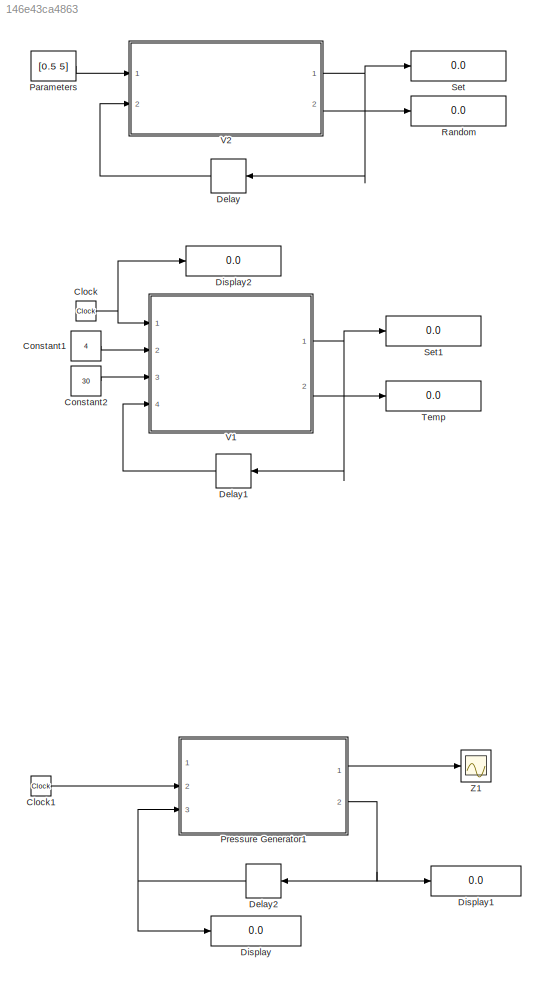
MODEL slx_146e43ca4863
KIND model
CONFIG AbsTol = auto
CONFIG EnableMultiTasking = off
CONFIG FixedStep = 1
CONFIG MaxStep = auto
CONFIG MinStep = auto
CONFIG RelTol = 1e-3
CONFIG SampleTimeConstraint = Unconstrained
CONFIG SolverName = VariableStepAuto
CONFIG StartTime = 0.0
CONFIG StopTime = 120
BLOCK [Clock] Clock
BLOCK [Clock] Clock1
BLOCK [Constant] Constant1
  Value = 4
BLOCK [Constant] Constant2
  Value = 30
BLOCK [Delay] Delay
  DelayLength = 1
  InitialCondition = 0
  InputPortMap = u0
  Ports = [1, 1]
BLOCK [Delay] Delay1
  DelayLength = 1
  InitialCondition = 0
  InputPortMap = u0
  Ports = [1, 1]
BLOCK [Delay] Delay2
  DelayLength = 1
  InitialCondition = 0.0001
  InputPortMap = u0
  Ports = [1, 1]
BLOCK [Display] Display
  Decimation = 1
  Format = long
  Ports = [1]
BLOCK [Display] Display1
  Decimation = 1
  Format = long
  Ports = [1]
BLOCK [Display] Display2
  Decimation = 1
  Ports = [1]
BLOCK [Constant] Parameters
  Value = [0.5 5]
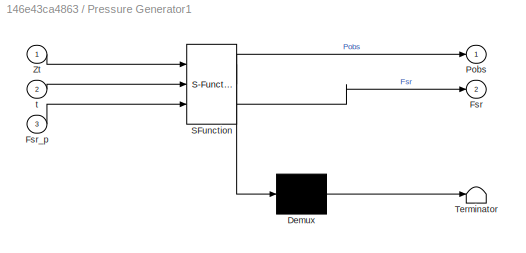
BLOCK [SubSystem] Pressure Generator1
  ErrorFcn = Stateflow.Translate.translate
  PermitHierarchicalResolution = ExplicitOnly
  Ports = [3, 2]
  RequestExecContextInheritance = off
  SFBlockType = MATLAB Function
  TreatAsAtomicUnit = on
BLOCK [Demux] Pressure Generator1/ Demux 
  Outputs = 1
  Ports = [1, 1]
BLOCK [S-Function] Pressure Generator1/ SFunction 
  EnableBusSupport = on
  FunctionName = sf_sfun
  PortCounts = [3 3]
  Ports = [3, 3]
  SFcnIsStateOwnerBlock = off
  SFunctionDeploymentMode = off
  Tag = Stateflow S-Function 11
BLOCK [Terminator] Pressure Generator1/ Terminator 
BLOCK [Outport] Pressure Generator1/Fsr
  Port = 2
BLOCK [Inport] Pressure Generator1/Fsr_p
  Port = 3
BLOCK [Outport] Pressure Generator1/Pobs
BLOCK [Inport] Pressure Generator1/Zt
BLOCK [Inport] Pressure Generator1/t
  Port = 2
BLOCK [Display] Random
  Decimation = 1
  Ports = [1]
BLOCK [Display] Set
  Decimation = 1
  Ports = [1]
BLOCK [Display] Set1
  Decimation = 1
  Ports = [1]
BLOCK [Display] Temp
  Decimation = 1
  Ports = [1]
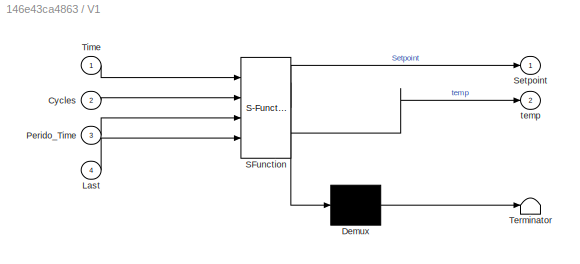
BLOCK [SubSystem] V1
  ErrorFcn = Stateflow.Translate.translate
  PermitHierarchicalResolution = ExplicitOnly
  Ports = [4, 2]
  RequestExecContextInheritance = off
  SFBlockType = MATLAB Function
  TreatAsAtomicUnit = on
BLOCK [Demux] V1/ Demux 
  Outputs = 1
  Ports = [1, 1]
BLOCK [S-Function] V1/ SFunction 
  EnableBusSupport = on
  FunctionName = sf_sfun
  PortCounts = [4 3]
  Ports = [4, 3]
  SFcnIsStateOwnerBlock = off
  SFunctionDeploymentMode = off
  Tag = Stateflow S-Function 1
BLOCK [Terminator] V1/ Terminator 
BLOCK [Inport] V1/Cycles
  Port = 2
BLOCK [Inport] V1/Last
  Port = 4
BLOCK [Inport] V1/Perido_Time
  Port = 3
BLOCK [Outport] V1/Setpoint
BLOCK [Inport] V1/Time
BLOCK [Outport] V1/temp
  Port = 2
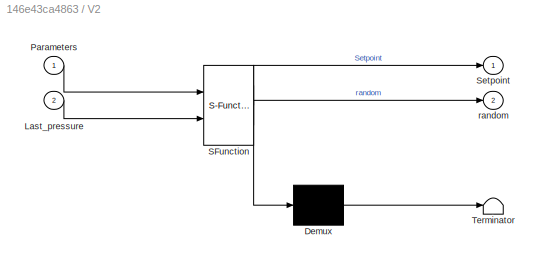
BLOCK [SubSystem] V2
  ErrorFcn = Stateflow.Translate.translate
  PermitHierarchicalResolution = ExplicitOnly
  Ports = [2, 2]
  RequestExecContextInheritance = off
  SFBlockType = MATLAB Function
  TreatAsAtomicUnit = on
BLOCK [Demux] V2/ Demux 
  Outputs = 1
  Ports = [1, 1]
BLOCK [S-Function] V2/ SFunction 
  EnableBusSupport = on
  FunctionName = sf_sfun
  PortCounts = [2 3]
  Ports = [2, 3]
  SFcnIsStateOwnerBlock = off
  SFunctionDeploymentMode = off
  Tag = Stateflow S-Function 3
BLOCK [Terminator] V2/ Terminator 
BLOCK [Inport] V2/Last_pressure
  Port = 2
BLOCK [Inport] V2/Parameters
BLOCK [Outport] V2/Setpoint
BLOCK [Outport] V2/random
  Port = 2
BLOCK [Scope] Z1
  Floating = off
  NumInputPorts = 1
  Ports = [1]
  ScopeSpecificationString = Simulink.scopes.TimeScopeBlockCfg('CurrentConfiguration', extmgr.ConfigurationSet(extmgr.Configuration('Core','General UI',true,'FigureColor',[0 0 0]),extmgr.Configuration('Core','Source UI',true),extmgr.Configuration('Sources','WiredSimulink',true,'DataLoggingVariableName','ScopeData1'),extmgr.Configuration('Visuals','Time Domain',true,'SerializedDisplays',{struct('MinYLimReal','-678.04476','MaxY...<+1676ch>
LINE Clock1:1 -> Pressure Generator1:2
NET Clock:1 -> Display2:1, V1:1
LINE Constant1:1 -> V1:2
LINE Constant2:1 -> V1:3
LINE Delay1:1 -> V1:4
NET Delay2:1 -> Display:1, Pressure Generator1:3
LINE Delay:1 -> V2:2
LINE Parameters:1 -> V2:1
LINE Pressure Generator1:1 -> Z1:1
NET Pressure Generator1:2 -> Delay2:1, Display1:1
NET V1:1 -> Delay1:1, Set1:1
LINE V1:2 -> Temp:1
NET V2:1 -> Delay:1, Set:1
LINE V2:2 -> Random:1
note: NET lines group one-source signal fan-out (src -> all destinations, sorted); 1:1 wires keep LINE
CHART V1 states=1 transitions=1
  STATE_LABEL 'eML_blk_kernel()'
  STATE_LABEL 'SCRIPT:\nfunction [Setpoint, temp] = Random_Setpoint(Time, Cycles,Perido_Time, Last)\n    Pcycles = ones(Cycles);\n    temp = 0;\n    min = 0;\n    max = 8;\n    r = min + rand(1)*(max-min);\n    for i = 1:Cycles\n        Pcycles(i) = i;\n        Pcycles(i) = i*Perido_Time;\n        %We should fine a random criteria to change the setpoint, not just\n        %time, or the moment B changes. For now works to de...<+325ch>'
CHART V2 states=1 transitions=1
  STATE_LABEL 'eML_blk_kernel()'
  STATE_LABEL 'SCRIPT:\nfunction [Setpoint, random] = Random_Setpoint(Parameters, Last_pressure)\n\n\n    %Parameters = [threshold Start_setpoint]\n\n    %Random used to simulate the connectivity changes, so we must change\n    %the pressure setpoint when changes in the connectitvy are observed.\n    tmin = 0;\n    tmax = 5;\n        %We should fine a random criteria to change the setpoint, not just\n        %time, or the ...<+696ch>'
CHART Pressure Generator1 states=1 transitions=1
  STATE_LABEL 'eML_blk_kernel()'
  STATE_LABEL 'SCRIPT:\nfunction [Pobs,Fsr] = PressureGenerator_sensor(Zt, t,Fsr_p)\n    C = 0.000001; % 0.1uF\n    Vcc = 500; %Considering 5V as a real sensor, the value is on mV\n    Rf = 10000; %Fixed resistor 10k ohms\n    kgf = 0.1019716213; % 1N = 0.1019716213 kgf\n    Fsr = 0;\n    Fsrforce = 0;\n\n    Vout = Zt(1) * (1 - exp( -t / C)); %Emulation of the capacitor\n    Fsr = (Vcc - Vout * Rf) / Vout;\n    FsConducta...<+294ch>'
CHART  states=0 transitions=0
CHART  states=0 transitions=0
CHART  states=0 transitions=0
